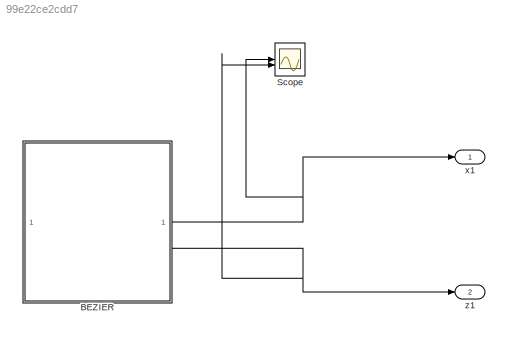
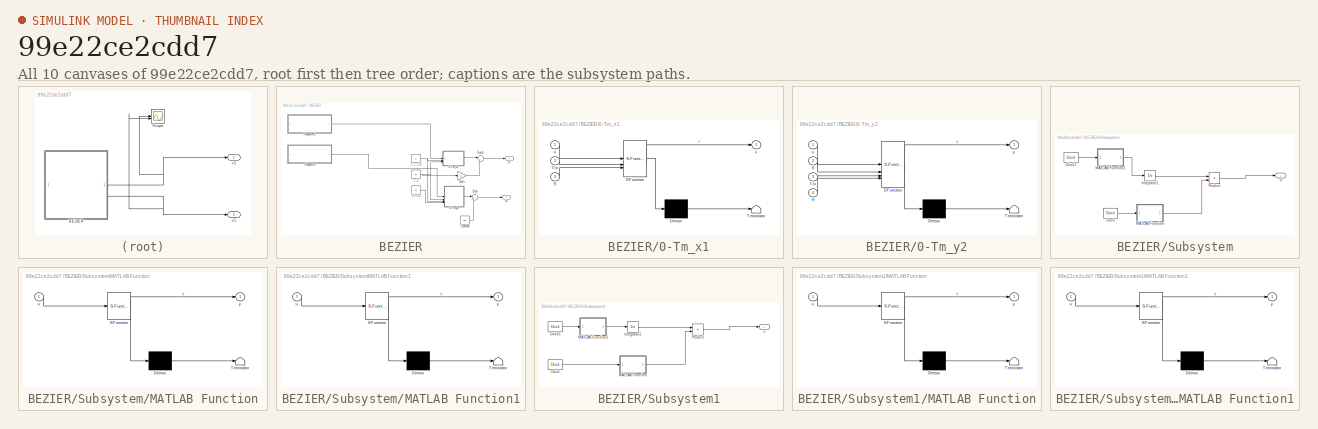
[diagram: thumbnail index - all 10 canvases of the model, root first then tree order]
MODEL slx_99e22ce2cdd7
KIND model
CONFIG AbsTol = auto
CONFIG EnableMultiTasking = off
CONFIG FixedStep = auto
CONFIG MaxStep = auto
CONFIG MinStep = auto
CONFIG RelTol = 1e-3
CONFIG SampleTimeConstraint = Unconstrained
CONFIG SolverName = VariableStepAuto
CONFIG StartTime = 0.0
CONFIG StopTime = 10.0
BLOCK [SubSystem] BEZIER
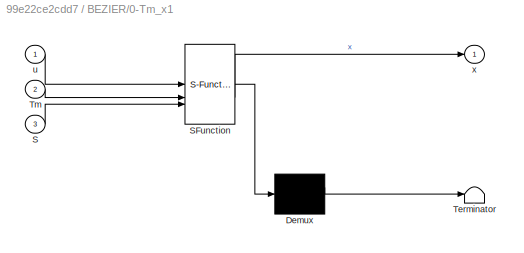
BLOCK [SubSystem] BEZIER/0-Tm_x1
  ErrorFcn = Stateflow.Translate.translate
  PermitHierarchicalResolution = ExplicitOnly
  SFBlockType = MATLAB Function
  TreatAsAtomicUnit = on
BLOCK [Demux] BEZIER/0-Tm_x1/ Demux 
  Outputs = 1
BLOCK [S-Function] BEZIER/0-Tm_x1/ SFunction 
  EnableBusSupport = on
  FunctionName = sf_sfun
  PortCounts = [3 2]
  SFcnIsStateOwnerBlock = off
  SFunctionDeploymentMode = off
  Tag = Stateflow S-Function 1
BLOCK [Terminator] BEZIER/0-Tm_x1/ Terminator 
BLOCK [Inport] BEZIER/0-Tm_x1/S
  Port = 3
BLOCK [Inport] BEZIER/0-Tm_x1/Tm
  Port = 2
BLOCK [Inport] BEZIER/0-Tm_x1/u
BLOCK [Outport] BEZIER/0-Tm_x1/x
  VectorParamsAs1DForOutWhenUnconnected = off
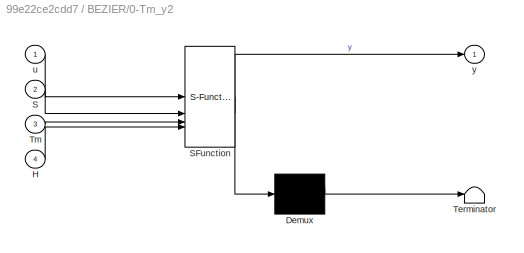
BLOCK [SubSystem] BEZIER/0-Tm_y2
  ErrorFcn = Stateflow.Translate.translate
  PermitHierarchicalResolution = ExplicitOnly
  SFBlockType = MATLAB Function
  TreatAsAtomicUnit = on
BLOCK [Demux] BEZIER/0-Tm_y2/ Demux 
  Outputs = 1
BLOCK [S-Function] BEZIER/0-Tm_y2/ SFunction 
  EnableBusSupport = on
  FunctionName = sf_sfun
  PortCounts = [4 2]
  SFcnIsStateOwnerBlock = off
  SFunctionDeploymentMode = off
  Tag = Stateflow S-Function 2
BLOCK [Terminator] BEZIER/0-Tm_y2/ Terminator 
BLOCK [Inport] BEZIER/0-Tm_y2/H
  Port = 4
BLOCK [Inport] BEZIER/0-Tm_y2/S
  Port = 2
BLOCK [Inport] BEZIER/0-Tm_y2/Tm
  Port = 3
BLOCK [Inport] BEZIER/0-Tm_y2/u
BLOCK [Outport] BEZIER/0-Tm_y2/y
  VectorParamsAs1DForOutWhenUnconnected = off
BLOCK [Constant] BEZIER/Constant
  Value = 200
BLOCK [Gain] BEZIER/Gain
  Gain = 0.5
BLOCK [SubSystem] BEZIER/Subsystem
BLOCK [Reference] BEZIER/Subsystem/Clock  REF=simulink_extras/Flip Flops/Clock
  SourceBlock = simulink_extras/Flip Flops/Clock
  SourceType = Digital clock
BLOCK [Reference] BEZIER/Subsystem/Clock1  REF=simulink_extras/Flip Flops/Clock
  SourceBlock = simulink_extras/Flip Flops/Clock
  SourceType = Digital clock
BLOCK [Integrator] BEZIER/Subsystem/Integrator1
BLOCK [SubSystem] BEZIER/Subsystem/MATLAB Function
  ErrorFcn = Stateflow.Translate.translate
  PermitHierarchicalResolution = ExplicitOnly
  SFBlockType = MATLAB Function
  TreatAsAtomicUnit = on
BLOCK [Demux] BEZIER/Subsystem/MATLAB Function/ Demux 
  Outputs = 1
BLOCK [S-Function] BEZIER/Subsystem/MATLAB Function/ SFunction 
  EnableBusSupport = on
  FunctionName = sf_sfun
  PortCounts = [1 2]
  SFcnIsStateOwnerBlock = off
  SFunctionDeploymentMode = off
  Tag = Stateflow S-Function 17
BLOCK [Terminator] BEZIER/Subsystem/MATLAB Function/ Terminator 
BLOCK [Inport] BEZIER/Subsystem/MATLAB Function/u
BLOCK [Outport] BEZIER/Subsystem/MATLAB Function/y
  VectorParamsAs1DForOutWhenUnconnected = off
BLOCK [SubSystem] BEZIER/Subsystem/MATLAB Function1
  ErrorFcn = Stateflow.Translate.translate
  PermitHierarchicalResolution = ExplicitOnly
  SFBlockType = MATLAB Function
  TreatAsAtomicUnit = on
BLOCK [Demux] BEZIER/Subsystem/MATLAB Function1/ Demux 
  Outputs = 1
BLOCK [S-Function] BEZIER/Subsystem/MATLAB Function1/ SFunction 
  EnableBusSupport = on
  FunctionName = sf_sfun
  PortCounts = [1 2]
  SFcnIsStateOwnerBlock = off
  SFunctionDeploymentMode = off
  Tag = Stateflow S-Function 18
BLOCK [Terminator] BEZIER/Subsystem/MATLAB Function1/ Terminator 
BLOCK [Inport] BEZIER/Subsystem/MATLAB Function1/u
BLOCK [Outport] BEZIER/Subsystem/MATLAB Function1/y
  VectorParamsAs1DForOutWhenUnconnected = off
BLOCK [Product] BEZIER/Subsystem/Product
BLOCK [Outport] BEZIER/Subsystem/u
  VectorParamsAs1DForOutWhenUnconnected = off
BLOCK [SubSystem] BEZIER/Subsystem1
BLOCK [Reference] BEZIER/Subsystem1/Clock  REF=simulink_extras/Flip Flops/Clock
  SourceBlock = simulink_extras/Flip Flops/Clock
  SourceType = Digital clock
BLOCK [Reference] BEZIER/Subsystem1/Clock1  REF=simulink_extras/Flip Flops/Clock
  SourceBlock = simulink_extras/Flip Flops/Clock
  SourceType = Digital clock
BLOCK [Integrator] BEZIER/Subsystem1/Integrator1
BLOCK [SubSystem] BEZIER/Subsystem1/MATLAB Function
  ErrorFcn = Stateflow.Translate.translate
  PermitHierarchicalResolution = ExplicitOnly
  SFBlockType = MATLAB Function
  TreatAsAtomicUnit = on
BLOCK [Demux] BEZIER/Subsystem1/MATLAB Function/ Demux 
  Outputs = 1
BLOCK [S-Function] BEZIER/Subsystem1/MATLAB Function/ SFunction 
  EnableBusSupport = on
  FunctionName = sf_sfun
  PortCounts = [1 2]
  SFcnIsStateOwnerBlock = off
  SFunctionDeploymentMode = off
  Tag = Stateflow S-Function 19
BLOCK [Terminator] BEZIER/Subsystem1/MATLAB Function/ Terminator 
BLOCK [Inport] BEZIER/Subsystem1/MATLAB Function/u
BLOCK [Outport] BEZIER/Subsystem1/MATLAB Function/y
  VectorParamsAs1DForOutWhenUnconnected = off
BLOCK [SubSystem] BEZIER/Subsystem1/MATLAB Function1
  ErrorFcn = Stateflow.Translate.translate
  PermitHierarchicalResolution = ExplicitOnly
  SFBlockType = MATLAB Function
  TreatAsAtomicUnit = on
BLOCK [Demux] BEZIER/Subsystem1/MATLAB Function1/ Demux 
  Outputs = 1
BLOCK [S-Function] BEZIER/Subsystem1/MATLAB Function1/ SFunction 
  EnableBusSupport = on
  FunctionName = sf_sfun
  PortCounts = [1 2]
  SFcnIsStateOwnerBlock = off
  SFunctionDeploymentMode = off
  Tag = Stateflow S-Function 20
BLOCK [Terminator] BEZIER/Subsystem1/MATLAB Function1/ Terminator 
BLOCK [Inport] BEZIER/Subsystem1/MATLAB Function1/u
BLOCK [Outport] BEZIER/Subsystem1/MATLAB Function1/y
  VectorParamsAs1DForOutWhenUnconnected = off
BLOCK [Product] BEZIER/Subsystem1/Product
BLOCK [Outport] BEZIER/Subsystem1/u
  VectorParamsAs1DForOutWhenUnconnected = off
BLOCK [Sum] BEZIER/Sum
  Inputs = |+-
BLOCK [Sum] BEZIER/Sum1
  Inputs = |+-
BLOCK [Outport] BEZIER/x1
  VectorParamsAs1DForOutWhenUnconnected = off
BLOCK [Outport] BEZIER/z1
  Port = 2
  VectorParamsAs1DForOutWhenUnconnected = off
BLOCK [Constant] BEZIER/抬腿高度2
  Value = 20
BLOCK [Constant] BEZIER/摆动相周期2
  Value = 2
BLOCK [Constant] BEZIER/步长2
  Value = 20
BLOCK [Scope] Scope
  Floating = off
  NumInputPorts = 2
  ScopeSpecificationString = Simulink.scopes.TimeScopeBlockCfg('CurrentConfiguration', extmgr.ConfigurationSet(extmgr.Configuration('Core','General UI',true),extmgr.Configuration('Core','Source UI',true),extmgr.Configuration('Sources','WiredSimulink',true),extmgr.Configuration('Visuals','Time Domain',true,'SerializedDisplays',{struct('MinYLimReal','-226.25','MaxYLimReal','36.25','YLabelReal','','MinYLimMag',' 0.00000','MaxYLi...<+1747ch>
BLOCK [Outport] x1
  VectorParamsAs1DForOutWhenUnconnected = off
BLOCK [Outport] z1
  Port = 2
  VectorParamsAs1DForOutWhenUnconnected = off
LINE BEZIER/0-Tm_x1:1 -> BEZIER/Sum1:1
LINE BEZIER/0-Tm_y2:1 -> BEZIER/Sum:1
LINE BEZIER/Constant:1 -> BEZIER/Sum:2
LINE BEZIER/Gain:1 -> BEZIER/Sum1:2
LINE BEZIER/Subsystem/Clock1:1 -> BEZIER/Subsystem/MATLAB Function1:1
LINE BEZIER/Subsystem/Clock:1 -> BEZIER/Subsystem/MATLAB Function:1
LINE BEZIER/Subsystem/Integrator1:1 -> BEZIER/Subsystem/Product:1
LINE BEZIER/Subsystem/MATLAB Function1:1 -> BEZIER/Subsystem/Integrator1:1
LINE BEZIER/Subsystem/MATLAB Function:1 -> BEZIER/Subsystem/Product:2
LINE BEZIER/Subsystem/Product:1 -> BEZIER/Subsystem/u:1
LINE BEZIER/Subsystem1/Clock1:1 -> BEZIER/Subsystem1/MATLAB Function1:1
LINE BEZIER/Subsystem1/Clock:1 -> BEZIER/Subsystem1/MATLAB Function:1
LINE BEZIER/Subsystem1/Integrator1:1 -> BEZIER/Subsystem1/Product:1
LINE BEZIER/Subsystem1/MATLAB Function1:1 -> BEZIER/Subsystem1/Integrator1:1
LINE BEZIER/Subsystem1/MATLAB Function:1 -> BEZIER/Subsystem1/Product:2
LINE BEZIER/Subsystem1/Product:1 -> BEZIER/Subsystem1/u:1
LINE BEZIER/Subsystem1:1 -> BEZIER/0-Tm_x1:1
LINE BEZIER/Subsystem:1 -> BEZIER/0-Tm_y2:1
LINE BEZIER/Sum1:1 -> BEZIER/x1:1
LINE BEZIER/Sum:1 -> BEZIER/z1:1
LINE BEZIER/抬腿高度2:1 -> BEZIER/0-Tm_y2:4
NET BEZIER/摆动相周期2:1 -> BEZIER/0-Tm_x1:2, BEZIER/0-Tm_y2:3
NET BEZIER/步长2:1 -> BEZIER/0-Tm_x1:3, BEZIER/0-Tm_y2:2, BEZIER/Gain:1
NET BEZIER:1 -> Scope:1, x1:1
NET BEZIER:2 -> Scope:2, z1:1
note: NET lines group one-source signal fan-out (src -> all destinations, sorted); 1:1 wires keep LINE
CHART BEZIER/0-Tm_x1 states=1 transitions=1
  STATE_LABEL 'eML_blk_kernel()'
  STATE_LABEL 'SCRIPT:\nfunction x = fcn(u,Tm,S)\n\nif u>0\n    x =S*(u/Tm-1/(2*pi)*sin(2*pi*u/Tm));\nelse \n    u=-u;\n     x =S*(u/Tm-1/(2*pi)*sin(2*pi*u/Tm));\nend\n'
CHART BEZIER/0-Tm_y2 states=1 transitions=1
  STATE_LABEL 'eML_blk_kernel()'
  STATE_LABEL 'SCRIPT:\nfunction y = fcn(u,S,Tm,H)\n\nn=4;\nif u>0\n    y=2*H*(u/Tm-1/(n*pi)*sin(n*pi*u/Tm)).*(u>=0&u<Tm/2)+2*H*(1-u/Tm+1/(n*pi)*sin(n*pi*u/Tm)).*(u>=Tm/2&u<Tm);;\nelse \n    y=0;\nend\n'
CHART BEZIER/Subsystem/MATLAB Function states=1 transitions=1
  STATE_LABEL 'eML_blk_kernel()'
  STATE_LABEL 'SCRIPT:\nfunction y = fcn(u)\nif u==0\n    y = -1;\nelse\n    y=1;\nend\nend\n'
CHART BEZIER/Subsystem/MATLAB Function1 states=1 transitions=1
  STATE_LABEL 'eML_blk_kernel()'
  STATE_LABEL 'SCRIPT:\nfunction y = fcn(u)\nif u==0\n    y = -1;\nelse\n    y=1;\nend\nend\n'
CHART BEZIER/Subsystem1/MATLAB Function states=1 transitions=1
  STATE_LABEL 'eML_blk_kernel()'
  STATE_LABEL 'SCRIPT:\nfunction y = fcn(u)\nif u==0\n    y = -1;\nelse\n    y=1;\nend\nend\n'
CHART BEZIER/Subsystem1/MATLAB Function1 states=1 transitions=1
  STATE_LABEL 'eML_blk_kernel()'
  STATE_LABEL 'SCRIPT:\nfunction y = fcn(u)\nif u==0\n    y = -1;\nelse\n    y=1;\nend\nend\n'
CHART  states=0 transitions=0
CHART  states=0 transitions=0
CHART  states=0 transitions=0
CHART  states=0 transitions=0
CHART  states=0 transitions=0
CHART  states=0 transitions=0
